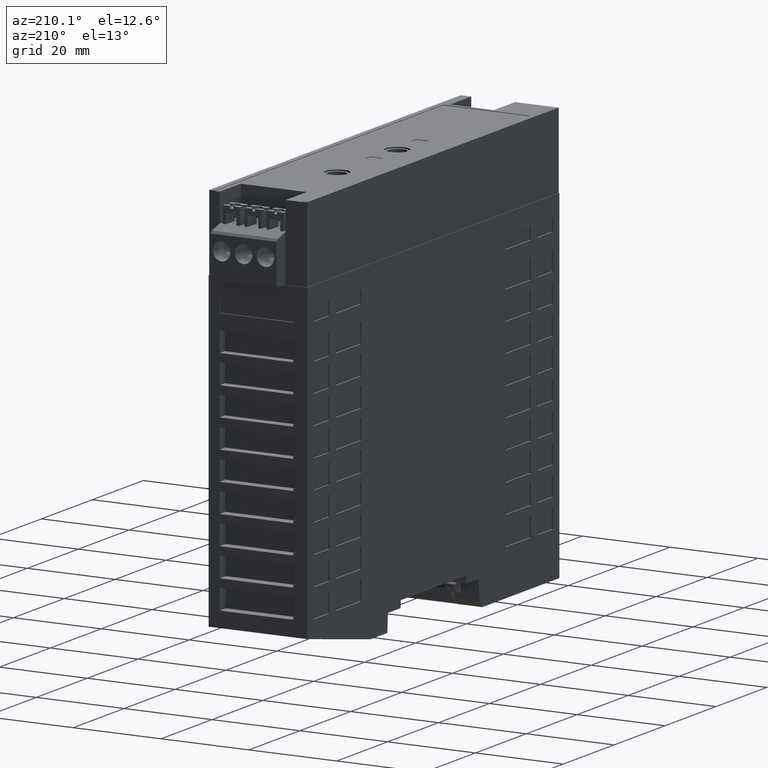
[diagram: clean part render]
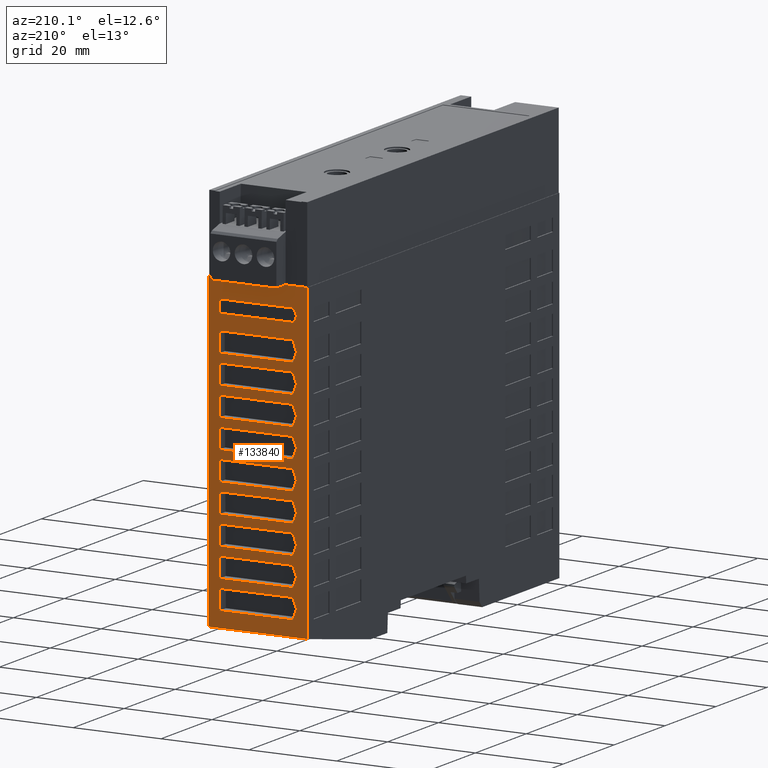
[diagram: same view with one face highlighted and labeled with its STEP entity id]
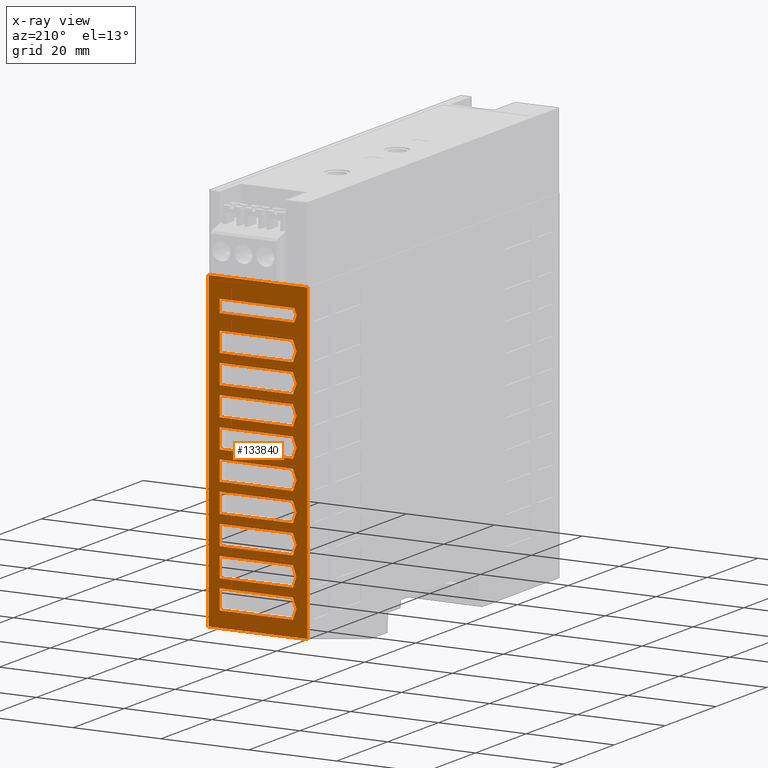
[diagram: x-ray of the same camera — body ghosted, the highlighted face saturated]
A machine part, auxiliary view. The second image highlights one B-rep face of the part: STEP entity #133840.
The next image is the same camera in x-ray: the body ghosted, the highlighted face saturated — about 0% of this face is hidden behind the body in this view.
In plain terms, the highlighted planar face has unit normal (0, -1, 0).
Its self-contained STEP definition (entity closure, byte-faithful):
#6860=CARTESIAN_POINT('',(-11.25,71.8,49.5));
#6870=DIRECTION('',(0.,-1.,0.));
#6880=VECTOR('',#6870,1.);
#6890=LINE('',#6860,#6880);
#6900=CARTESIAN_POINT('',(-11.25,71.8,49.5));
#6910=VERTEX_POINT('',#6900);
#6920=CARTESIAN_POINT('',(-11.25,0.820631666614119,49.5));
#6930=VERTEX_POINT('',#6920);
#6940=EDGE_CURVE('',#6910,#6930,#6890,.T.);
#22670=CARTESIAN_POINT('',(11.25,0.820631666614119,49.5));
#22680=VERTEX_POINT('',#22670);
#22710=CARTESIAN_POINT('',(11.25,71.8,49.5));
#22720=DIRECTION('',(0.,1.,0.));
#22730=VECTOR('',#22720,1.);
#22740=LINE('',#22710,#22730);
#22750=CARTESIAN_POINT('',(11.25,71.8,49.5));
#22760=VERTEX_POINT('',#22750);
#22770=EDGE_CURVE('',#22680,#22760,#22740,.T.);
#27630=CARTESIAN_POINT('',(0.,0.820631666614119,49.5));
#27640=DIRECTION('',(-1.,0.,0.));
#27650=VECTOR('',#27640,1.);
#27660=LINE('',#27630,#27650);
#27670=EDGE_CURVE('',#22680,#6930,#27660,.T.);
#55780=CARTESIAN_POINT('',(-8.77499999995509,71.8,49.5));
#55790=VERTEX_POINT('',#55780);
#100020=CARTESIAN_POINT('',(6.225000000045,71.8,49.5));
#100030=VERTEX_POINT('',#100020);
#100060=CARTESIAN_POINT('',(0.,71.8,49.5));
#100070=DIRECTION('',(1.,-1.38777878078145E-16,0.));
#100080=VECTOR('',#100070,1.);
#100090=LINE('',#100060,#100080);
#100100=EDGE_CURVE('',#55790,#100030,#100090,.T.);
#129450=CARTESIAN_POINT('',(-11.25,71.8,49.5));
#129460=DIRECTION('',(0.,0.,-1.));
#129470=DIRECTION('',(0.,1.,0.));
#129480=AXIS2_PLACEMENT_3D('',#129450,#129460,#129470);
#129490=PLANE('',#129480);
#129500=CARTESIAN_POINT('',(-8.75000000000001,71.8,49.5));
#129510=DIRECTION('',(0.,-1.,0.));
#129520=VECTOR('',#129510,1.);
#129530=LINE('',#129500,#129520);
#129540=CARTESIAN_POINT('',(-8.75000000000001,47.85,49.5));
#129550=VERTEX_POINT('',#129540);
#129560=CARTESIAN_POINT('',(-8.75000000000001,43.35,49.5));
#129570=VERTEX_POINT('',#129560);
#129580=EDGE_CURVE('',#129550,#129570,#129530,.T.);
#129590=ORIENTED_EDGE('',*,*,#129580,.F.);
#129600=CARTESIAN_POINT('',(0.,43.35,49.5));
#129610=DIRECTION('',(1.,0.,0.));
#129620=VECTOR('',#129610,1.);
#129630=LINE('',#129600,#129620);
#129640=CARTESIAN_POINT('',(7.93106697290099,43.35,49.5));
#129650=VERTEX_POINT('',#129640);
#129660=EDGE_CURVE('',#129570,#129650,#129630,.T.);
#129670=ORIENTED_EDGE('',*,*,#129660,.F.);
#129680=CARTESIAN_POINT('',(18.2860201377755,71.8,49.5));
#129690=DIRECTION('',(0.342020143325699,0.939692620785897,0.));
#129700=VECTOR('',#129690,1.);
#129710=LINE('',#129680,#129700);
#129720=CARTESIAN_POINT('',(8.75000000000001,45.6,49.5));
#129730=VERTEX_POINT('',#129720);
#129740=EDGE_CURVE('',#129650,#129730,#129710,.T.);
#129750=ORIENTED_EDGE('',*,*,#129740,.F.);
#129760=CARTESIAN_POINT('',(-0.786020137775438,71.8,49.5));
#129770=DIRECTION('',(-0.342020143325699,0.939692620785897,0.));
#129780=VECTOR('',#129770,1.);
#129790=LINE('',#129760,#129780);
#129800=CARTESIAN_POINT('',(7.93106697290099,47.85,49.5));
#129810=VERTEX_POINT('',#129800);
#129820=EDGE_CURVE('',#129730,#129810,#129790,.T.);
#129830=ORIENTED_EDGE('',*,*,#129820,.F.);
#129840=CARTESIAN_POINT('',(0.,47.85,49.5));
#129850=DIRECTION('',(-1.,0.,0.));
#129860=VECTOR('',#129850,1.);
#129870=LINE('',#129840,#129860);
#129880=EDGE_CURVE('',#129810,#129550,#129870,.T.);
#129890=ORIENTED_EDGE('',*,*,#129880,.F.);
#129900=EDGE_LOOP('',(#129890,#129830,#129750,#129670,#129590));
#129910=FACE_BOUND('',#129900,.T.);
#129920=CARTESIAN_POINT('',(0.,34.85,49.5));
#129930=DIRECTION('',(-1.,0.,0.));
#129940=VECTOR('',#129930,1.);
#129950=LINE('',#129920,#129940);
#129960=CARTESIAN_POINT('',(7.93106697290099,34.85,49.5));
#129970=VERTEX_POINT('',#129960);
#129980=CARTESIAN_POINT('',(-8.75000000000001,34.85,49.5));
#129990=VERTEX_POINT('',#129980);
#130000=EDGE_CURVE('',#129970,#129990,#129950,.T.);
#130010=ORIENTED_EDGE('',*,*,#130000,.F.);
#130020=CARTESIAN_POINT('',(-8.75000000000001,71.8,49.5));
#130030=DIRECTION('',(0.,-1.,0.));
#130040=VECTOR('',#130030,1.);
#130050=LINE('',#130020,#130040);
#130060=CARTESIAN_POINT('',(-8.75000000000001,30.35,49.5));
#130070=VERTEX_POINT('',#130060);
#130080=EDGE_CURVE('',#129990,#130070,#130050,.T.);
#130090=ORIENTED_EDGE('',*,*,#130080,.F.);
#130100=CARTESIAN_POINT('',(0.,30.35,49.5));
#130110=DIRECTION('',(1.,0.,0.));
#130120=VECTOR('',#130110,1.);
#130130=LINE('',#130100,#130120);
#130140=CARTESIAN_POINT('',(7.93106697290098,30.35,49.5));
#130150=VERTEX_POINT('',#130140);
#130160=EDGE_CURVE('',#130070,#130150,#130130,.T.);
#130170=ORIENTED_EDGE('',*,*,#130160,.F.);
#130180=CARTESIAN_POINT('',(23.0176331832366,71.8,49.5));
#130190=DIRECTION('',(0.342020143325699,0.939692620785897,0.));
#130200=VECTOR('',#130190,1.);
#130210=LINE('',#130180,#130200);
#130220=CARTESIAN_POINT('',(8.75000000000002,32.6,49.5));
#130230=VERTEX_POINT('',#130220);
#130240=EDGE_CURVE('',#130150,#130230,#130210,.T.);
#130250=ORIENTED_EDGE('',*,*,#130240,.F.);
#130260=CARTESIAN_POINT('',(-5.51763318323655,71.8,49.5));
#130270=DIRECTION('',(-0.342020143325699,0.939692620785897,0.));
#130280=VECTOR('',#130270,1.);
#130290=LINE('',#130260,#130280);
#130300=EDGE_CURVE('',#130230,#129970,#130290,.T.);
#130310=ORIENTED_EDGE('',*,*,#130300,.F.);
#130320=EDGE_LOOP('',(#130310,#130250,#130170,#130090,#130010));
#130330=FACE_BOUND('',#130320,.T.);
#130340=CARTESIAN_POINT('',(0.,28.35,49.5));
#130350=DIRECTION('',(-1.,0.,0.));
#130360=VECTOR('',#130350,1.);
#130370=LINE('',#130340,#130360);
#130380=CARTESIAN_POINT('',(7.93106697290099,28.35,49.5));
#130390=VERTEX_POINT('',#130380);
#130400=CARTESIAN_POINT('',(-8.75000000000001,28.35,49.5));
#130410=VERTEX_POINT('',#130400);
#130420=EDGE_CURVE('',#130390,#130410,#130370,.T.);
#130430=ORIENTED_EDGE('',*,*,#130420,.F.);
#130440=CARTESIAN_POINT('',(-8.75000000000001,71.8,49.5));
#130450=DIRECTION('',(0.,-1.,0.));
#130460=VECTOR('',#130450,1.);
#130470=LINE('',#130440,#130460);
#130480=CARTESIAN_POINT('',(-8.75000000000001,23.85,49.5));
#130490=VERTEX_POINT('',#130480);
#130500=EDGE_CURVE('',#130410,#130490,#130470,.T.);
#130510=ORIENTED_EDGE('',*,*,#130500,.F.);
#130520=CARTESIAN_POINT('',(0.,23.85,49.5));
#130530=DIRECTION('',(1.,0.,0.));
#130540=VECTOR('',#130530,1.);
#130550=LINE('',#130520,#130540);
#130560=CARTESIAN_POINT('',(7.93106697290098,23.85,49.5));
#130570=VERTEX_POINT('',#130560);
#130580=EDGE_CURVE('',#130490,#130570,#130550,.T.);
#130590=ORIENTED_EDGE('',*,*,#130580,.F.);
#130600=CARTESIAN_POINT('',(25.3834397059671,71.8,49.5));
#130610=DIRECTION('',(0.342020143325699,0.939692620785897,0.));
#130620=VECTOR('',#130610,1.);
#130630=LINE('',#130600,#130620);
#130640=CARTESIAN_POINT('',(8.75000000000001,26.1,49.5));
#130650=VERTEX_POINT('',#130640);
#130660=EDGE_CURVE('',#130570,#130650,#130630,.T.);
#130670=ORIENTED_EDGE('',*,*,#130660,.F.);
#130680=CARTESIAN_POINT('',(-7.8834397059671,71.8,49.5));
#130690=DIRECTION('',(-0.342020143325699,0.939692620785897,0.));
#130700=VECTOR('',#130690,1.);
#130710=LINE('',#130680,#130700);
#130720=EDGE_CURVE('',#130650,#130390,#130710,.T.);
#130730=ORIENTED_EDGE('',*,*,#130720,.F.);
#130740=EDGE_LOOP('',(#130730,#130670,#130590,#130510,#130430));
#130750=FACE_BOUND('',#130740,.T.);
#130760=CARTESIAN_POINT('',(0.,41.35,49.5));
#130770=DIRECTION('',(-1.,0.,0.));
#130780=VECTOR('',#130770,1.);
#130790=LINE('',#130760,#130780);
#130800=CARTESIAN_POINT('',(7.93106697290099,41.35,49.5));
#130810=VERTEX_POINT('',#130800);
#130820=CARTESIAN_POINT('',(-8.75000000000001,41.35,49.5));
#130830=VERTEX_POINT('',#130820);
#130840=EDGE_CURVE('',#130810,#130830,#130790,.T.);
#130850=ORIENTED_EDGE('',*,*,#130840,.F.);
#130860=CARTESIAN_POINT('',(-8.75000000000001,71.8,49.5));
#130870=DIRECTION('',(0.,-1.,0.));
#130880=VECTOR('',#130870,1.);
#130890=LINE('',#130860,#130880);
#130900=CARTESIAN_POINT('',(-8.75000000000001,36.85,49.5));
#130910=VERTEX_POINT('',#130900);
#130920=EDGE_CURVE('',#130830,#130910,#130890,.T.);
#130930=ORIENTED_EDGE('',*,*,#130920,.F.);
#130940=CARTESIAN_POINT('',(0.,36.85,49.5));
#130950=DIRECTION('',(1.,0.,0.));
#130960=VECTOR('',#130950,1.);
#130970=LINE('',#130940,#130960);
#130980=CARTESIAN_POINT('',(7.93106697290099,36.85,49.5));
#130990=VERTEX_POINT('',#130980);
#131000=EDGE_CURVE('',#130910,#130990,#130970,.T.);
#131010=ORIENTED_EDGE('',*,*,#131000,.F.);
#131020=CARTESIAN_POINT('',(20.651826660506,71.8,49.5));
#131030=DIRECTION('',(0.342020143325699,0.939692620785897,0.));
#131040=VECTOR('',#131030,1.);
#131050=LINE('',#131020,#131040);
#131060=CARTESIAN_POINT('',(8.75000000000001,39.1,49.5));
#131070=VERTEX_POINT('',#131060);
#131080=EDGE_CURVE('',#130990,#131070,#131050,.T.);
#131090=ORIENTED_EDGE('',*,*,#131080,.F.);
#131100=CARTESIAN_POINT('',(-3.15182666050599,71.8,49.5));
#131110=DIRECTION('',(-0.342020143325699,0.939692620785897,0.));
#131120=VECTOR('',#131110,1.);
#131130=LINE('',#131100,#131120);
#131140=EDGE_CURVE('',#131070,#130810,#131130,.T.);
#131150=ORIENTED_EDGE('',*,*,#131140,.F.);
#131160=EDGE_LOOP('',(#131150,#131090,#131010,#130930,#130850));
#131170=FACE_BOUND('',#131160,.T.);
#131180=CARTESIAN_POINT('',(0.,15.35,49.5));
#131190=DIRECTION('',(-1.,0.,0.));
#131200=VECTOR('',#131190,1.);
#131210=LINE('',#131180,#131200);
#131220=CARTESIAN_POINT('',(7.93106697290099,15.35,49.5));
#131230=VERTEX_POINT('',#131220);
#131240=CARTESIAN_POINT('',(-8.75000000000001,15.35,49.5));
#131250=VERTEX_POINT('',#131240);
#131260=EDGE_CURVE('',#131230,#131250,#131210,.T.);
#131270=ORIENTED_EDGE('',*,*,#131260,.F.);
#131280=CARTESIAN_POINT('',(-8.75000000000001,71.8,49.5));
#131290=DIRECTION('',(0.,-1.,0.));
#131300=VECTOR('',#131290,1.);
#131310=LINE('',#131280,#131300);
#131320=CARTESIAN_POINT('',(-8.75000000000001,10.85,49.5));
#131330=VERTEX_POINT('',#131320);
#131340=EDGE_CURVE('',#131250,#131330,#131310,.T.);
#131350=ORIENTED_EDGE('',*,*,#131340,.F.);
#131360=CARTESIAN_POINT('',(0.,10.85,49.5));
#131370=DIRECTION('',(1.,0.,0.));
#131380=VECTOR('',#131370,1.);
#131390=LINE('',#131360,#131380);
#131400=CARTESIAN_POINT('',(7.93106697290099,10.85,49.5));
#131410=VERTEX_POINT('',#131400);
#131420=EDGE_CURVE('',#131330,#131410,#131390,.T.);
#131430=ORIENTED_EDGE('',*,*,#131420,.F.);
#131440=CARTESIAN_POINT('',(30.1150527514283,71.8,49.5));
#131450=DIRECTION('',(0.342020143325699,0.939692620785897,0.));
#131460=VECTOR('',#131450,1.);
#131470=LINE('',#131440,#131460);
#131480=CARTESIAN_POINT('',(8.75000000000003,13.1,49.5));
#131490=VERTEX_POINT('',#131480);
#131500=EDGE_CURVE('',#131410,#131490,#131470,.T.);
#131510=ORIENTED_EDGE('',*,*,#131500,.F.);
#131520=CARTESIAN_POINT('',(-12.6150527514282,71.8,49.5));
#131530=DIRECTION('',(-0.342020143325699,0.939692620785897,0.));
#131540=VECTOR('',#131530,1.);
#131550=LINE('',#131520,#131540);
#131560=EDGE_CURVE('',#131490,#131230,#131550,.T.);
#131570=ORIENTED_EDGE('',*,*,#131560,.F.);
#131580=EDGE_LOOP('',(#131570,#131510,#131430,#131350,#131270));
#131590=FACE_BOUND('',#131580,.T.);
#131600=CARTESIAN_POINT('',(0.,56.35,49.5));
#131610=DIRECTION('',(1.,0.,0.));
#131620=VECTOR('',#131610,1.);
#131630=LINE('',#131600,#131620);
#131640=CARTESIAN_POINT('',(-8.75000000000001,56.35,49.5));
#131650=VERTEX_POINT('',#131640);
#131660=CARTESIAN_POINT('',(7.93106697290098,56.35,49.5));
#131670=VERTEX_POINT('',#131660);
#131680=EDGE_CURVE('',#131650,#131670,#131630,.T.);
#131690=ORIENTED_EDGE('',*,*,#131680,.F.);
#131700=CARTESIAN_POINT('',(13.5544070923143,71.8,49.5));
#131710=DIRECTION('',(0.342020143325699,0.939692620785897,0.));
#131720=VECTOR('',#131710,1.);
#131730=LINE('',#131700,#131720);
#131740=CARTESIAN_POINT('',(8.74999999999999,58.6,49.5));
#131750=VERTEX_POINT('',#131740);
#131760=EDGE_CURVE('',#131670,#131750,#131730,.T.);
#131770=ORIENTED_EDGE('',*,*,#131760,.F.);
#131780=CARTESIAN_POINT('',(3.94559290768563,71.8,49.5));
#131790=DIRECTION('',(-0.342020143325699,0.939692620785897,0.));
#131800=VECTOR('',#131790,1.);
#131810=LINE('',#131780,#131800);
#131820=CARTESIAN_POINT('',(7.93106697290095,60.85,49.5));
#131830=VERTEX_POINT('',#131820);
#131840=EDGE_CURVE('',#131750,#131830,#131810,.T.);
#131850=ORIENTED_EDGE('',*,*,#131840,.F.);
#131860=CARTESIAN_POINT('',(0.,60.85,49.5));
#131870=DIRECTION('',(-1.,0.,0.));
#131880=VECTOR('',#131870,1.);
#131890=LINE('',#131860,#131880);
#131900=CARTESIAN_POINT('',(-8.75000000000001,60.85,49.5));
#131910=VERTEX_POINT('',#131900);
#131920=EDGE_CURVE('',#131830,#131910,#131890,.T.);
#131930=ORIENTED_EDGE('',*,*,#131920,.F.);
#131940=CARTESIAN_POINT('',(-8.75000000000001,71.8,49.5));
#131950=DIRECTION('',(0.,-1.,0.));
#131960=VECTOR('',#131950,1.);
#131970=LINE('',#131940,#131960);
#131980=EDGE_CURVE('',#131910,#131650,#131970,.T.);
#131990=ORIENTED_EDGE('',*,*,#131980,.F.);
#132000=EDGE_LOOP('',(#131990,#131930,#131850,#131770,#131690));
#132010=FACE_BOUND('',#132000,.T.);
#132020=CARTESIAN_POINT('',(0.,8.84999999999999,49.5));
#132030=DIRECTION('',(-1.,0.,0.));
#132040=VECTOR('',#132030,1.);
#132050=LINE('',#132020,#132040);
#132060=CARTESIAN_POINT('',(7.93106697290096,8.84999999999999,49.5));
#132070=VERTEX_POINT('',#132060);
#132080=CARTESIAN_POINT('',(-8.75000000000001,8.84999999999999,49.5));
#132090=VERTEX_POINT('',#132080);
#132100=EDGE_CURVE('',#132070,#132090,#132050,.T.);
#132110=ORIENTED_EDGE('',*,*,#132100,.F.);
#132120=CARTESIAN_POINT('',(-8.75000000000001,71.8,49.5));
#132130=DIRECTION('',(0.,-1.,0.));
#132140=VECTOR('',#132130,1.);
#132150=LINE('',#132120,#132140);
#132160=CARTESIAN_POINT('',(-8.75000000000001,4.34999999999999,49.5));
#132170=VERTEX_POINT('',#132160);
#132180=EDGE_CURVE('',#132090,#132170,#132150,.T.);
#132190=ORIENTED_EDGE('',*,*,#132180,.F.);
#132200=CARTESIAN_POINT('',(0.,4.34999999999999,49.5));
#132210=DIRECTION('',(1.,0.,0.));
#132220=VECTOR('',#132210,1.);
#132230=LINE('',#132200,#132220);
#132240=CARTESIAN_POINT('',(7.93106697290099,4.34999999999999,49.5));
#132250=VERTEX_POINT('',#132240);
#132260=EDGE_CURVE('',#132170,#132250,#132230,.T.);
#132270=ORIENTED_EDGE('',*,*,#132260,.F.);
#132280=CARTESIAN_POINT('',(32.4808592741588,71.8,49.5));
#132290=DIRECTION('',(0.342020143325699,0.939692620785897,0.));
#132300=VECTOR('',#132290,1.);
#132310=LINE('',#132280,#132300);
#132320=CARTESIAN_POINT('',(8.75000000000001,6.59999999999994,49.5));
#132330=VERTEX_POINT('',#132320);
#132340=EDGE_CURVE('',#132250,#132330,#132310,.T.);
#132350=ORIENTED_EDGE('',*,*,#132340,.F.);
#132360=CARTESIAN_POINT('',(-14.9808592741588,71.8,49.5));
#132370=DIRECTION('',(-0.342020143325699,0.939692620785897,0.));
#132380=VECTOR('',#132370,1.);
#132390=LINE('',#132360,#132380);
#132400=EDGE_CURVE('',#132330,#132070,#132390,.T.);
#132410=ORIENTED_EDGE('',*,*,#132400,.F.);
#132420=EDGE_LOOP('',(#132410,#132350,#132270,#132190,#132110));
#132430=FACE_BOUND('',#132420,.T.);
#132440=CARTESIAN_POINT('',(10.9156228938842,71.8,49.5));
#132450=DIRECTION('',(0.342020143325699,0.939692620785897,0.));
#132460=VECTOR('',#132450,1.);
#132470=LINE('',#132440,#132460);
#132480=CARTESIAN_POINT('',(8.22224316031398,64.4,49.5));
#132490=VERTEX_POINT('',#132480);
#132500=CARTESIAN_POINT('',(8.75000000000004,65.85,49.5));
#132510=VERTEX_POINT('',#132500);
#132520=EDGE_CURVE('',#132490,#132510,#132470,.T.);
#132530=ORIENTED_EDGE('',*,*,#132520,.F.);
#132540=CARTESIAN_POINT('',(6.58437710611591,71.8,49.5));
#132550=DIRECTION('',(-0.342020143325699,0.939692620785897,0.));
#132560=VECTOR('',#132550,1.);
#132570=LINE('',#132540,#132560);
#132580=CARTESIAN_POINT('',(8.22224316031399,67.3,49.5));
#132590=VERTEX_POINT('',#132580);
#132600=EDGE_CURVE('',#132510,#132590,#132570,.T.);
#132610=ORIENTED_EDGE('',*,*,#132600,.F.);
#132620=CARTESIAN_POINT('',(0.,67.3,49.5));
#132630=DIRECTION('',(-1.,0.,0.));
#132640=VECTOR('',#132630,1.);
#132650=LINE('',#132620,#132640);
#132660=CARTESIAN_POINT('',(-8.75000000000001,67.3,49.5));
#132670=VERTEX_POINT('',#132660);
#132680=EDGE_CURVE('',#132590,#132670,#132650,.T.);
#132690=ORIENTED_EDGE('',*,*,#132680,.F.);
#132700=CARTESIAN_POINT('',(-8.75000000000001,71.8,49.5));
#132710=DIRECTION('',(0.,-1.,0.));
#132720=VECTOR('',#132710,1.);
#132730=LINE('',#132700,#132720);
#132740=CARTESIAN_POINT('',(-8.75000000000001,64.4,49.5));
#132750=VERTEX_POINT('',#132740);
#132760=EDGE_CURVE('',#132670,#132750,#132730,.T.);
#132770=ORIENTED_EDGE('',*,*,#132760,.F.);
#132780=CARTESIAN_POINT('',(0.,64.4,49.5));
#132790=DIRECTION('',(1.,0.,0.));
#132800=VECTOR('',#132790,1.);
#132810=LINE('',#132780,#132800);
#132820=EDGE_CURVE('',#132750,#132490,#132810,.T.);
#132830=ORIENTED_EDGE('',*,*,#132820,.F.);
#132840=EDGE_LOOP('',(#132830,#132770,#132690,#132610,#132530));
#132850=FACE_BOUND('',#132840,.T.);
#132860=CARTESIAN_POINT('',(0.,21.85,49.5));
#132870=DIRECTION('',(-1.,0.,0.));
#132880=VECTOR('',#132870,1.);
#132890=LINE('',#132860,#132880);
#132900=CARTESIAN_POINT('',(7.93106697290099,21.85,49.5));
#132910=VERTEX_POINT('',#132900);
#132920=CARTESIAN_POINT('',(-8.75000000000001,21.85,49.5));
#132930=VERTEX_POINT('',#132920);
#132940=EDGE_CURVE('',#132910,#132930,#132890,.T.);
#132950=ORIENTED_EDGE('',*,*,#132940,.F.);
#132960=CARTESIAN_POINT('',(-8.75000000000001,71.8,49.5));
#132970=DIRECTION('',(0.,-1.,0.));
#132980=VECTOR('',#132970,1.);
#132990=LINE('',#132960,#132980);
#133000=CARTESIAN_POINT('',(-8.75000000000001,17.35,49.5));
#133010=VERTEX_POINT('',#133000);
#133020=EDGE_CURVE('',#132930,#133010,#132990,.T.);
#133030=ORIENTED_EDGE('',*,*,#133020,.F.);
#133040=CARTESIAN_POINT('',(0.,17.35,49.5));
#133050=DIRECTION('',(1.,0.,0.));
#133060=VECTOR('',#133050,1.);
#133070=LINE('',#133040,#133060);
#133080=CARTESIAN_POINT('',(7.93106697290098,17.35,49.5));
#133090=VERTEX_POINT('',#133080);
#133100=EDGE_CURVE('',#133010,#133090,#133070,.T.);
#133110=ORIENTED_EDGE('',*,*,#133100,.F.);
#133120=CARTESIAN_POINT('',(27.7492462286977,71.8,49.5));
#133130=DIRECTION('',(0.342020143325699,0.939692620785897,0.));
#133140=VECTOR('',#133130,1.);
#133150=LINE('',#133120,#133140);
#133160=CARTESIAN_POINT('',(8.75000000000003,19.6,49.5));
#133170=VERTEX_POINT('',#133160);
#133180=EDGE_CURVE('',#133090,#133170,#133150,.T.);
#133190=ORIENTED_EDGE('',*,*,#133180,.F.);
#133200=CARTESIAN_POINT('',(-10.2492462286977,71.8,49.5));
#133210=DIRECTION('',(-0.342020143325699,0.939692620785897,0.));
#133220=VECTOR('',#133210,1.);
#133230=LINE('',#133200,#133220);
#133240=EDGE_CURVE('',#133170,#132910,#133230,.T.);
#133250=ORIENTED_EDGE('',*,*,#133240,.F.);
#133260=EDGE_LOOP('',(#133250,#133190,#133110,#133030,#132950));
#133270=FACE_BOUND('',#133260,.T.);
#133280=CARTESIAN_POINT('',(1.57978638495508,71.8,49.5));
#133290=DIRECTION('',(-0.342020143325699,0.939692620785897,0.));
#133300=VECTOR('',#133290,1.);
#133310=LINE('',#133280,#133300);
#133320=CARTESIAN_POINT('',(8.74999999999998,52.1,49.5));
#133330=VERTEX_POINT('',#133320);
#133340=CARTESIAN_POINT('',(7.93106697290095,54.35,49.5));
#133350=VERTEX_POINT('',#133340);
#133360=EDGE_CURVE('',#133330,#133350,#133310,.T.);
#133370=ORIENTED_EDGE('',*,*,#133360,.F.);
#133380=CARTESIAN_POINT('',(0.,54.35,49.5));
#133390=DIRECTION('',(-1.,0.,0.));
#133400=VECTOR('',#133390,1.);
#133410=LINE('',#133380,#133400);
#133420=CARTESIAN_POINT('',(-8.75000000000001,54.35,49.5));
#133430=VERTEX_POINT('',#133420);
#133440=EDGE_CURVE('',#133350,#133430,#133410,.T.);
#133450=ORIENTED_EDGE('',*,*,#133440,.F.);
#133460=CARTESIAN_POINT('',(-8.75000000000001,71.8,49.5));
#133470=DIRECTION('',(0.,-1.,0.));
#133480=VECTOR('',#133470,1.);
#133490=LINE('',#133460,#133480);
#133500=CARTESIAN_POINT('',(-8.75000000000001,49.85,49.5));
#133510=VERTEX_POINT('',#133500);
#133520=EDGE_CURVE('',#133430,#133510,#133490,.T.);
#133530=ORIENTED_EDGE('',*,*,#133520,.F.);
#133540=CARTESIAN_POINT('',(0.,49.85,49.5));
#133550=DIRECTION('',(1.,0.,0.));
#133560=VECTOR('',#133550,1.);
#133570=LINE('',#133540,#133560);
#133580=CARTESIAN_POINT('',(7.93106697290095,49.85,49.5));
#133590=VERTEX_POINT('',#133580);
#133600=EDGE_CURVE('',#133510,#133590,#133570,.T.);
#133610=ORIENTED_EDGE('',*,*,#133600,.F.);
#133620=CARTESIAN_POINT('',(15.9202136150449,71.8,49.5));
#133630=DIRECTION('',(0.342020143325699,0.939692620785897,0.));
#133640=VECTOR('',#133630,1.);
#133650=LINE('',#133620,#133640);
#133660=EDGE_CURVE('',#133590,#133330,#133650,.T.);
#133670=ORIENTED_EDGE('',*,*,#133660,.F.);
#133680=EDGE_LOOP('',(#133670,#133610,#133530,#133450,#133370));
#133690=FACE_BOUND('',#133680,.T.);
#133700=ORIENTED_EDGE('',*,*,#6940,.T.);
#133710=CARTESIAN_POINT('',(0.,71.8,49.5));
#133720=DIRECTION('',(1.,-1.38777878078145E-16,0.));
#133730=VECTOR('',#133720,1.);
#133740=LINE('',#133710,#133730);
#133750=EDGE_CURVE('',#6910,#55790,#133740,.T.);
#133760=ORIENTED_EDGE('',*,*,#133750,.F.);
#133770=ORIENTED_EDGE('',*,*,#100100,.F.);
#133780=EDGE_CURVE('',#100030,#22760,#133740,.T.);
#133790=ORIENTED_EDGE('',*,*,#133780,.F.);
#133800=ORIENTED_EDGE('',*,*,#22770,.T.);
#133810=ORIENTED_EDGE('',*,*,#27670,.F.);
#133820=EDGE_LOOP('',(#133810,#133800,#133790,#133770,#133760,#133700));
#133830=FACE_OUTER_BOUND('',#133820,.T.);
#133840=ADVANCED_FACE('',(#129910,#130330,#130750,#131170,#131590,
#132010,#132430,#132850,#133270,#133690,#133830),#129490,.F.);